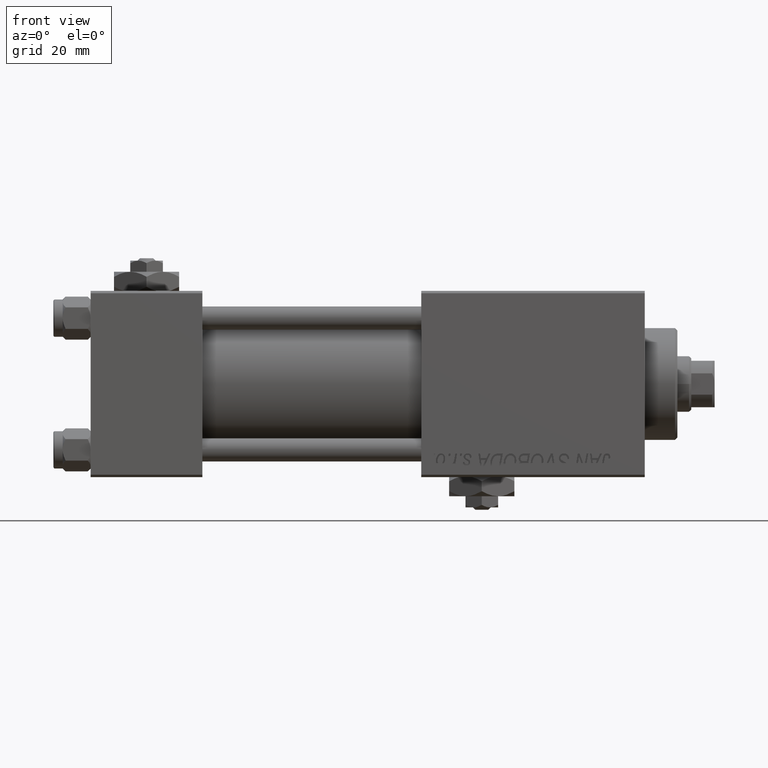
[diagram: clean part render]
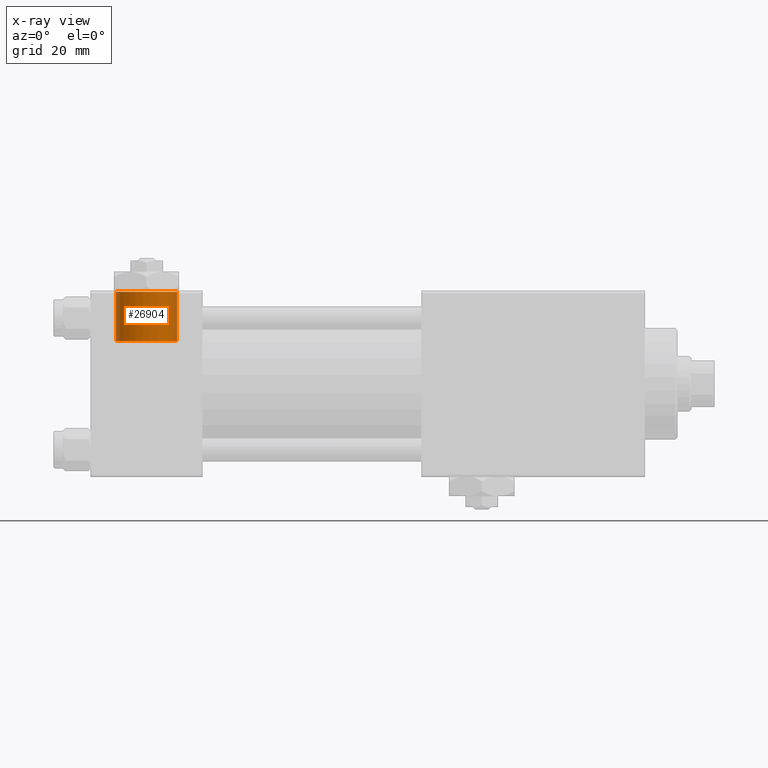
[diagram: x-ray — body ghosted, one internal face saturated and labeled with its STEP entity id]
A machine part, front view, then the same camera in x-ray: the body is ghosted and one INTERNAL B-rep face — a face not visible from any outside direction — is saturated and labeled: STEP entity #26904.
In plain terms, the highlighted cylindrical surface (edge-blend (fillet) strip) has radius 6.58 mm, axis along (0, 0, 1).
Its self-contained STEP definition (entity closure, byte-faithful):
#1391 = VECTOR ( 'NONE', #25250, 1000.000000000000000 ) ;
#3436 = DIRECTION ( 'NONE',  ( 1.000000000000000000, 0.000000000000000000, 0.000000000000000000 ) ) ;
#4040 = VERTEX_POINT ( 'NONE', #35794 ) ;
#4276 = AXIS2_PLACEMENT_3D ( 'NONE', #9298, #5340, #48598 ) ;
#4425 = CARTESIAN_POINT ( 'NONE',  ( 18.57999999999999829, 1.540743955509788682E-30, 19.79999999999999716 ) ) ;
#5340 = DIRECTION ( 'NONE',  ( 0.000000000000000000, 0.000000000000000000, 1.000000000000000000 ) ) ;
#9298 = CARTESIAN_POINT ( 'NONE',  ( 12.00000000000000000, 1.540743955509788682E-30, 19.79999999999999716 ) ) ;
#10851 = CYLINDRICAL_SURFACE ( 'NONE', #44925, 6.579999999999999183 ) ;
#11877 = EDGE_CURVE ( 'NONE', #4040, #32694, #23855, .T. ) ;
#14996 = EDGE_LOOP ( 'NONE', ( #37197, #51093, #43965, #35483 ) ) ;
#19063 = LINE ( 'NONE', #42789, #46917 ) ;
#19575 = DIRECTION ( 'NONE',  ( -0.000000000000000000, -0.000000000000000000, 1.000000000000000000 ) ) ;
#20912 = EDGE_CURVE ( 'NONE', #30501, #37731, #38793, .T. ) ;
#22166 = AXIS2_PLACEMENT_3D ( 'NONE', #46733, #22504, #37786 ) ;
#22504 = DIRECTION ( 'NONE',  ( -0.000000000000000000, -0.000000000000000000, -1.000000000000000000 ) ) ;
#23246 = FACE_OUTER_BOUND ( 'NONE', #14996, .T. ) ;
#23855 = CIRCLE ( 'NONE', #22166, 6.579999999999999183 ) ;
#25250 = DIRECTION ( 'NONE',  ( -0.000000000000000000, -0.000000000000000000, 1.000000000000000000 ) ) ;
#26904 = ADVANCED_FACE ( 'NONE', ( #23246 ), #10851, .F. ) ;
#30501 = VERTEX_POINT ( 'NONE', #50067 ) ;
#31408 = CARTESIAN_POINT ( 'NONE',  ( 12.00000000000000000, 1.540743955509788682E-30, 9.199999999999995737 ) ) ;
#32694 = VERTEX_POINT ( 'NONE', #46977 ) ;
#35483 = ORIENTED_EDGE ( 'NONE', *, *, #40530, .F. ) ;
#35794 = CARTESIAN_POINT ( 'NONE',  ( 18.57999999999999829, 1.540743955509788682E-30, 9.165987261146492315 ) ) ;
#37197 = ORIENTED_EDGE ( 'NONE', *, *, #11877, .T. ) ;
#37731 = VERTEX_POINT ( 'NONE', #4425 ) ;
#37786 = DIRECTION ( 'NONE',  ( 1.000000000000000000, 0.000000000000000000, 0.000000000000000000 ) ) ;
#38793 = CIRCLE ( 'NONE', #4276, 6.579999999999999183 ) ;
#39047 = DIRECTION ( 'NONE',  ( -0.000000000000000000, -0.000000000000000000, 1.000000000000000000 ) ) ;
#40530 = EDGE_CURVE ( 'NONE', #4040, #37731, #19063, .T. ) ;
#42789 = CARTESIAN_POINT ( 'NONE',  ( 18.57999999999999829, 1.540743955509788682E-30, 9.199999999999995737 ) ) ;
#43965 = ORIENTED_EDGE ( 'NONE', *, *, #20912, .T. ) ;
#44760 = CARTESIAN_POINT ( 'NONE',  ( 5.420000000000000817, 8.058175938389596335E-16, 9.199999999999995737 ) ) ;
#44925 = AXIS2_PLACEMENT_3D ( 'NONE', #31408, #39047, #3436 ) ;
#45015 = LINE ( 'NONE', #44760, #1391 ) ;
#46733 = CARTESIAN_POINT ( 'NONE',  ( 12.00000000000000000, 1.540743955509788682E-30, 9.165987261146492315 ) ) ;
#46917 = VECTOR ( 'NONE', #19575, 1000.000000000000000 ) ;
#46977 = CARTESIAN_POINT ( 'NONE',  ( 5.420000000000000817, 8.058175938389596335E-16, 9.165987261146492315 ) ) ;
#48598 = DIRECTION ( 'NONE',  ( 1.000000000000000000, 0.000000000000000000, 0.000000000000000000 ) ) ;
#49638 = EDGE_CURVE ( 'NONE', #32694, #30501, #45015, .T. ) ;
#50067 = CARTESIAN_POINT ( 'NONE',  ( 5.420000000000000817, 8.058175938389596335E-16, 19.79999999999999716 ) ) ;
#51093 = ORIENTED_EDGE ( 'NONE', *, *, #49638, .T. ) ;